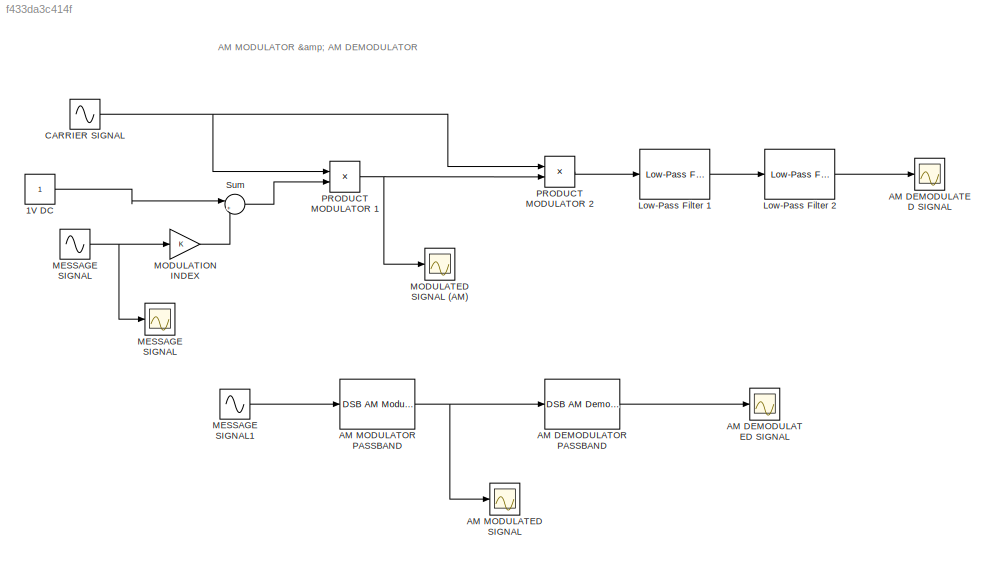
MODEL slx_f433da3c414f
KIND model
CONFIG AbsTol = auto
CONFIG EnableMultiTasking = off
CONFIG FixedStep = auto
CONFIG MaxStep = auto
CONFIG MinStep = auto
CONFIG RelTol = 1e-3
CONFIG SampleTimeConstraint = Unconstrained
CONFIG Solver = VariableStepAuto
CONFIG SolverName = VariableStepAuto
CONFIG StartTime = 0.0
CONFIG StopTime = 10.0
BLOCK [Scope]  AM DEMODULATED SIGNAL 
  Floating = off
  NumInputPorts = 1
  Ports = [1]
  ScopeSpecificationString = Simulink.scopes.TimeScopeBlockCfg('CurrentConfiguration', extmgr.ConfigurationSet(extmgr.Configuration('Core','General UI',true),extmgr.Configuration('Core','Source UI',true),extmgr.Configuration('Sources','WiredSimulink',true,'DataLoggingVariableName','ScopeData1'),extmgr.Configuration('Visuals','Time Domain',true,'SerializedDisplays',{struct('MinYLimReal','-1.25168','MaxYLimReal','1.25168','YLab...<+1413ch>
BLOCK [Reference]  AM DEMODULATOR PASSBAND  REF=commanapbnd3/DSB AM
Demodulator
Passband
  Ports = [1, 1]
  SourceBlock = commanapbnd3/DSB AM\nDemodulator\nPassband
  SourceProductBaseCode = CM
  SourceProductName = Communications Toolbox
  SourceType = DSB AM Demodulator Passband
BLOCK [Scope]  AM MODULATED SIGNAL 
  Floating = off
  NumInputPorts = 1
  Ports = [1]
  ScopeSpecificationString = Simulink.scopes.TimeScopeBlockCfg('CurrentConfiguration', extmgr.ConfigurationSet(extmgr.Configuration('Core','General UI',true),extmgr.Configuration('Core','Source UI',true),extmgr.Configuration('Sources','WiredSimulink',true,'DataLoggingVariableName','ScopeData2'),extmgr.Configuration('Visuals','Time Domain',true,'SerializedDisplays',{struct('MinYLimReal','-1.25','MaxYLimReal','1.25','YLabelReal...<+1393ch>
BLOCK [Reference]  AM MODULATOR PASSBAND   REF=commanapbnd3/DSB AM
Modulator
Passband
  Ports = [1, 1]
  SourceBlock = commanapbnd3/DSB AM\nModulator\nPassband
  SourceProductBaseCode = CM
  SourceProductName = Communications Toolbox
  SourceType = DSB AM Modulator Passband
BLOCK [Reference]  Low-Pass Filter 1  REF=eeGeneralControl/Low-Pass Filter
(Discrete or Continuous)
  Ports = [1, 1]
  SourceBlock = eeGeneralControl/Low-Pass Filter\n(Discrete or Continuous)
  SourceProductBaseCode = PS
  SourceProductName = Simscape Electrical
  SourceType = Low-Pass Filter (Discrete or Continuous)
BLOCK [Reference]  Low-Pass Filter 2  REF=eeGeneralControl/Low-Pass Filter
(Discrete or Continuous)
  Ports = [1, 1]
  SourceBlock = eeGeneralControl/Low-Pass Filter\n(Discrete or Continuous)
  SourceProductBaseCode = PS
  SourceProductName = Simscape Electrical
  SourceType = Low-Pass Filter (Discrete or Continuous)
BLOCK [Constant] 1V DC
BLOCK [Scope] AM DEMODULATED SIGNAL
  Floating = off
  NumInputPorts = 1
  Ports = [1]
  ScopeSpecificationString = Simulink.scopes.TimeScopeBlockCfg('CurrentConfiguration', extmgr.ConfigurationSet(extmgr.Configuration('Core','General UI',true),extmgr.Configuration('Core','Source UI',true),extmgr.Configuration('Sources','WiredSimulink',true,'DataLoggingVariableName','ScopeData3'),extmgr.Configuration('Visuals','Time Domain',true,'SerializedDisplays',{struct('MinYLimReal','-1.25','MaxYLimReal','11.25','YLabelRea...<+1405ch>
BLOCK [Sin] CARRIER SIGNAL
  Frequency = 2*pi*5
  Ports = [0, 1]
  SampleTime = 0.001
BLOCK [Scope] MESSAGE SIGNAL
  Floating = off
  NumInputPorts = 1
  Ports = [1]
  ScopeSpecificationString = Simulink.scopes.TimeScopeBlockCfg('CurrentConfiguration', extmgr.ConfigurationSet(extmgr.Configuration('Core','General UI',true),extmgr.Configuration('Core','Source UI',true),extmgr.Configuration('Sources','WiredSimulink',true,'DataLoggingVariableName','ScopeData1'),extmgr.Configuration('Visuals','Time Domain',true,'SerializedDisplays',{struct('MinYLimReal','-1.43981','MaxYLimReal','1.13913','YLab...<+1388ch>
BLOCK [Sin] MESSAGE SIGNAL1
  Frequency = 2*pi*1
  Ports = [0, 1]
  SampleTime = 0.001
BLOCK [Scope] MODULATED SIGNAL (AM)
  Floating = off
  NumInputPorts = 1
  Ports = [1]
  ScopeSpecificationString = Simulink.scopes.TimeScopeBlockCfg('CurrentConfiguration', extmgr.ConfigurationSet(extmgr.Configuration('Core','General UI',true),extmgr.Configuration('Core','Source UI',true),extmgr.Configuration('Sources','WiredSimulink',true),extmgr.Configuration('Visuals','Time Domain',true,'SerializedDisplays',{struct('MinYLimReal','-1.43981','MaxYLimReal','1.13913','YLabelReal','','MinYLimMag','0.00000','MaxY...<+1346ch>
BLOCK [Gain] MODULATION INDEX 
  OutDataTypeStr = Inherit: Inherit via internal rule
  ParamDataTypeStr = Inherit: Inherit via internal rule
  SaturateOnIntegerOverflow = off
BLOCK [Product] PRODUCT MODULATOR 1
  InputSameDT = off
  OutDataTypeStr = Inherit: Inherit via internal rule
  Ports = [2, 1]
  RndMeth = Floor
  SaturateOnIntegerOverflow = off
BLOCK [Product] PRODUCT MODULATOR 2
  InputSameDT = off
  OutDataTypeStr = Inherit: Inherit via internal rule
  Ports = [2, 1]
  RndMeth = Floor
  SaturateOnIntegerOverflow = off
BLOCK [Sum] Sum
  IconShape = round
  InputSameDT = off
  Inputs = |++
  OutDataTypeStr = Inherit: Inherit via internal rule
  Ports = [2, 1]
  SaturateOnIntegerOverflow = off
ANNOTATION (root): AM MODULATOR & AM DEMODULATOR
LINE  AM DEMODULATOR PASSBAND:1 ->  AM DEMODULATED SIGNAL :1
NET  AM MODULATOR PASSBAND :1 ->  AM DEMODULATOR PASSBAND:1,  AM MODULATED SIGNAL :1
LINE  Low-Pass Filter 1:1 ->  Low-Pass Filter 2:1
LINE  Low-Pass Filter 2:1 -> AM DEMODULATED SIGNAL:1
LINE 1V DC:1 -> Sum:1
NET CARRIER SIGNAL:1 -> PRODUCT MODULATOR 1:1, PRODUCT MODULATOR 2:1
LINE MESSAGE SIGNAL1:1 ->  AM MODULATOR PASSBAND :1
NET MESSAGE SIGNAL:1 -> MESSAGE SIGNAL:1, MODULATION INDEX :1
LINE MODULATION INDEX :1 -> Sum:2
NET PRODUCT MODULATOR 1:1 -> MODULATED SIGNAL (AM):1, PRODUCT MODULATOR 2:2
LINE PRODUCT MODULATOR 2:1 ->  Low-Pass Filter 1:1
LINE Sum:1 -> PRODUCT MODULATOR 1:2
note: NET lines group one-source signal fan-out (src -> all destinations, sorted); 1:1 wires keep LINE
